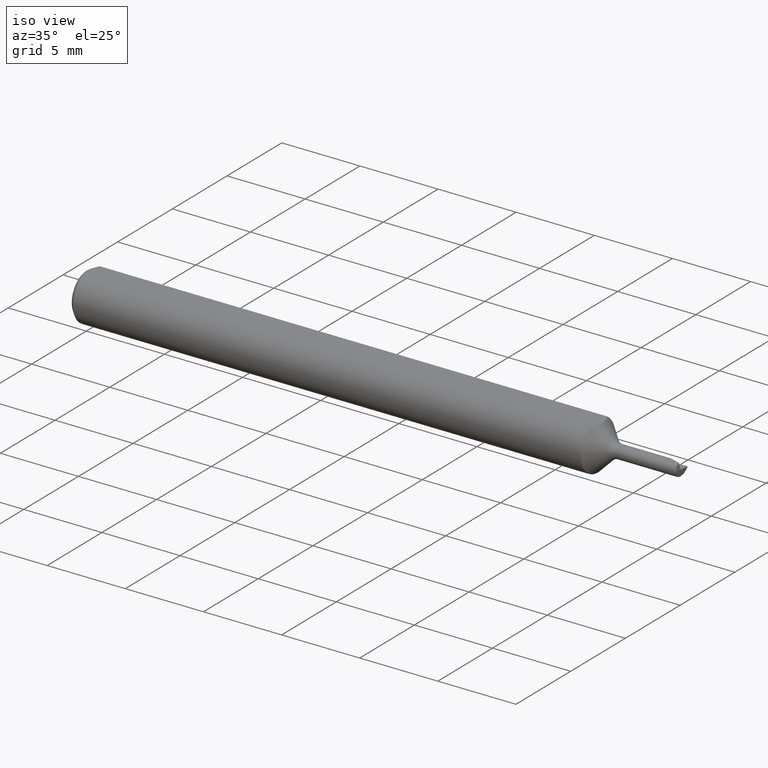
[diagram: clean part render]
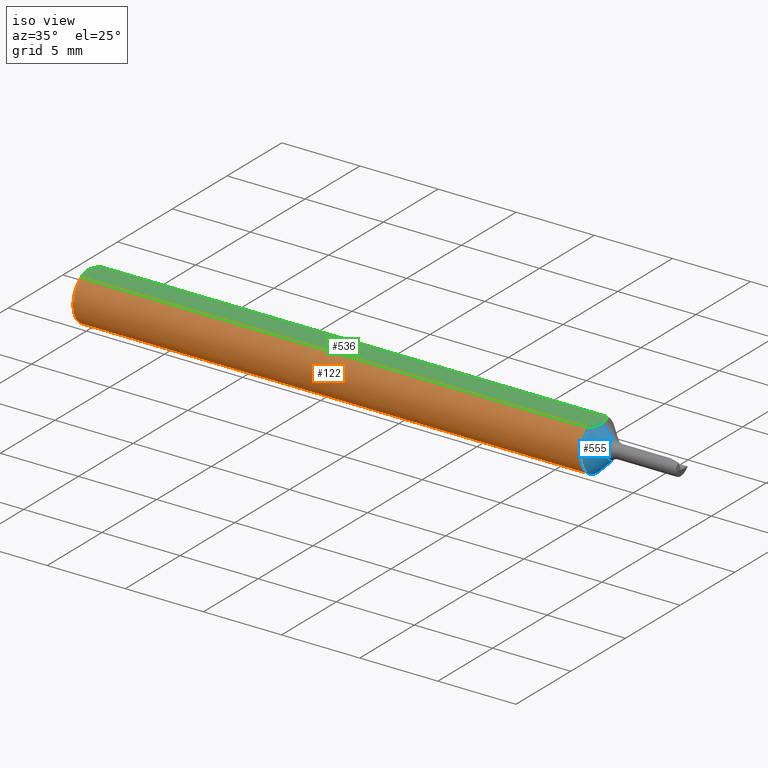
[diagram: same view with three faces highlighted in distinct colors, each labeled with its STEP entity id]
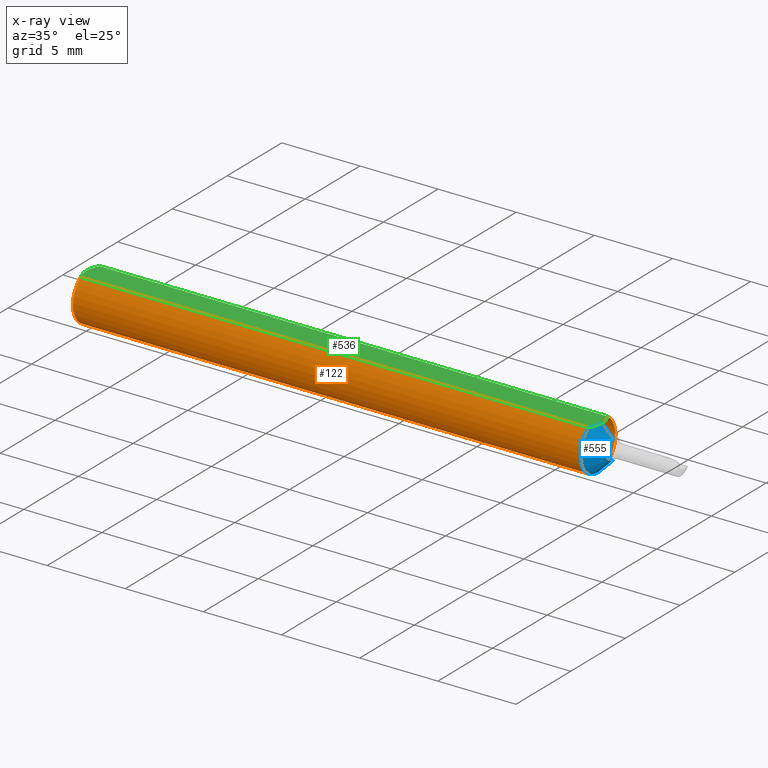
[diagram: x-ray of the same camera — body ghosted, the three highlighted faces saturated]
A machine part, iso view with three faces highlighted in distinct colors.
The next image is the same camera in x-ray (body ghosted, the three faces saturated) — at least one of them is partly hidden behind the body in this view.
Their STEP definitions:

[orange] entity #122 — the highlighted cylindrical surface (edge-blend (fillet) strip) has radius 1.5837 mm, axis along (-1, -0, -0).
#11 = VERTEX_POINT ( 'NONE', #275 ) ;
#12 = CIRCLE ( 'NONE', #595, 0.06235000000000000264 ) ;
#30 = DIRECTION ( 'NONE',  ( 0.000000000000000000, 0.000000000000000000, 1.000000000000000000 ) ) ;
#39 = LINE ( 'NONE', #563, #279 ) ;
#69 = EDGE_LOOP ( 'NONE', ( #705, #351, #175, #588, #659, #430 ) ) ;
#82 = DIRECTION ( 'NONE',  ( -1.000000000000000000, -0.000000000000000000, -0.000000000000000000 ) ) ;
#116 = EDGE_CURVE ( 'NONE', #649, #361, #39, .T. ) ;
#122 = ADVANCED_FACE ( 'NONE', ( #406 ), #462, .T. ) ;
#136 = CARTESIAN_POINT ( 'NONE',  ( 0.000000000000000000, 0.03386738844375220686, 0.05235000000000000070 ) ) ;
#157 = AXIS2_PLACEMENT_3D ( 'NONE', #189, #518, #403 ) ;
#160 = CARTESIAN_POINT ( 'NONE',  ( 1.289150000000000462, 7.635672792683746671E-18, -0.06235000000000000264 ) ) ;
#164 = EDGE_CURVE ( 'NONE', #361, #444, #12, .T. ) ;
#175 = ORIENTED_EDGE ( 'NONE', *, *, #116, .T. ) ;
#189 = CARTESIAN_POINT ( 'NONE',  ( 0.009999999999999887451, 0.000000000000000000, 0.000000000000000000 ) ) ;
#191 = EDGE_CURVE ( 'NONE', #444, #11, #537, .T. ) ;
#193 = CARTESIAN_POINT ( 'NONE',  ( 0.009999999999999887451, 0.000000000000000000, 0.000000000000000000 ) ) ;
#196 = EDGE_CURVE ( 'NONE', #11, #483, #570, .T. ) ;
#258 = CARTESIAN_POINT ( 'NONE',  ( 0.01000000000000840841, -0.03386738844395137393, 0.05235000000000001458 ) ) ;
#275 = CARTESIAN_POINT ( 'NONE',  ( 0.009999999999999890921, 0.03386738844375217911, 0.05235000000000001458 ) ) ;
#276 = DIRECTION ( 'NONE',  ( -1.000000000000000000, -0.000000000000000000, -0.000000000000000000 ) ) ;
#279 = VECTOR ( 'NONE', #82, 39.37007874015748143 ) ;
#283 = CARTESIAN_POINT ( 'NONE',  ( 1.289150000000000462, 0.000000000000000000, 0.000000000000000000 ) ) ;
#296 = CARTESIAN_POINT ( 'NONE',  ( 0.000000000000000000, 0.000000000000000000, 0.000000000000000000 ) ) ;
#323 = AXIS2_PLACEMENT_3D ( 'NONE', #441, #544, #603 ) ;
#325 = CARTESIAN_POINT ( 'NONE',  ( 0.009999999999999887451, 0.000000000000000000, -0.06235000000000000264 ) ) ;
#343 = CIRCLE ( 'NONE', #653, 0.06235000000000000264 ) ;
#350 = DIRECTION ( 'NONE',  ( -1.000000000000000000, -0.000000000000000000, -0.000000000000000000 ) ) ;
#351 = ORIENTED_EDGE ( 'NONE', *, *, #460, .T. ) ;
#361 = VERTEX_POINT ( 'NONE', #258 ) ;
#368 = VERTEX_POINT ( 'NONE', #160 ) ;
#369 = VECTOR ( 'NONE', #576, 39.37007874015748143 ) ;
#403 = DIRECTION ( 'NONE',  ( 0.000000000000000000, 0.000000000000000000, -1.000000000000000000 ) ) ;
#406 = FACE_OUTER_BOUND ( 'NONE', #69, .T. ) ;
#430 = ORIENTED_EDGE ( 'NONE', *, *, #196, .T. ) ;
#431 = DIRECTION ( 'NONE',  ( 0.000000000000000000, 0.000000000000000000, 1.000000000000000000 ) ) ;
#437 = CARTESIAN_POINT ( 'NONE',  ( 1.289150000000000462, 0.03386738844375220686, 0.05235000000000000070 ) ) ;
#440 = EDGE_CURVE ( 'NONE', #483, #368, #654, .T. ) ;
#441 = CARTESIAN_POINT ( 'NONE',  ( 1.289150000000000462, 0.000000000000000000, 0.000000000000000000 ) ) ;
#444 = VERTEX_POINT ( 'NONE', #325 ) ;
#460 = EDGE_CURVE ( 'NONE', #368, #649, #343, .T. ) ;
#462 = CYLINDRICAL_SURFACE ( 'NONE', #490, 0.06235000000000000264 ) ;
#483 = VERTEX_POINT ( 'NONE', #437 ) ;
#490 = AXIS2_PLACEMENT_3D ( 'NONE', #296, #350, #30 ) ;
#518 = DIRECTION ( 'NONE',  ( 1.000000000000000000, 0.000000000000000000, 0.000000000000000000 ) ) ;
#537 = CIRCLE ( 'NONE', #157, 0.06235000000000000264 ) ;
#544 = DIRECTION ( 'NONE',  ( -1.000000000000000000, -0.000000000000000000, -0.000000000000000000 ) ) ;
#563 = CARTESIAN_POINT ( 'NONE',  ( 0.000000000000000000, -0.03386738844375220686, 0.05235000000000000070 ) ) ;
#570 = LINE ( 'NONE', #136, #369 ) ;
#576 = DIRECTION ( 'NONE',  ( 1.000000000000000000, 0.000000000000000000, 0.000000000000000000 ) ) ;
#588 = ORIENTED_EDGE ( 'NONE', *, *, #164, .T. ) ;
#595 = AXIS2_PLACEMENT_3D ( 'NONE', #193, #618, #686 ) ;
#603 = DIRECTION ( 'NONE',  ( 0.000000000000000000, 0.000000000000000000, 1.000000000000000000 ) ) ;
#618 = DIRECTION ( 'NONE',  ( 1.000000000000000000, 0.000000000000000000, 0.000000000000000000 ) ) ;
#649 = VERTEX_POINT ( 'NONE', #671 ) ;
#653 = AXIS2_PLACEMENT_3D ( 'NONE', #283, #276, #431 ) ;
#654 = CIRCLE ( 'NONE', #323, 0.06235000000000000264 ) ;
#659 = ORIENTED_EDGE ( 'NONE', *, *, #191, .T. ) ;
#671 = CARTESIAN_POINT ( 'NONE',  ( 1.289150000000000462, -0.03386738844375220686, 0.05235000000000000070 ) ) ;
#686 = DIRECTION ( 'NONE',  ( 0.000000000000000000, 0.000000000000000000, -1.000000000000000000 ) ) ;
#705 = ORIENTED_EDGE ( 'NONE', *, *, #440, .T. ) ;

[blue] entity #555 — the highlighted conical surface has half-angle 45 deg.
#5 = CARTESIAN_POINT ( 'NONE',  ( 1.299150000000000249, -2.188243502173987421E-21, 0.05235000000000001458 ) ) ;
#9 = CARTESIAN_POINT ( 'NONE',  ( 1.299150000000000027, -0.005924191432847217796, 0.05235000000000002152 ) ) ;
#27 = ORIENTED_EDGE ( 'NONE', *, *, #254, .F. ) ;
#36 = CONICAL_SURFACE ( 'NONE', #90, 0.02382233047033655710, 0.7853981633974463916 ) ;
#38 = CARTESIAN_POINT ( 'NONE',  ( 1.327677669529663929, 0.000000000000000000, 0.02382233047033643566 ) ) ;
#68 = CARTESIAN_POINT ( 'NONE',  ( 1.298078678928531016, -0.01191689336434298939, 0.05235000000000002152 ) ) ;
#86 = ORIENTED_EDGE ( 'NONE', *, *, #460, .F. ) ;
#87 = DIRECTION ( 'NONE',  ( 0.000000000000000000, 0.000000000000000000, 1.000000000000000000 ) ) ;
#90 = AXIS2_PLACEMENT_3D ( 'NONE', #562, #356, #505 ) ;
#119 = CARTESIAN_POINT ( 'NONE',  ( 1.299150000000000249, -2.188243502173987421E-21, 0.05235000000000001458 ) ) ;
#138 = CARTESIAN_POINT ( 'NONE',  ( 1.327677669529663929, 2.917394075872797303E-18, -0.02382233047033643566 ) ) ;
#147 = EDGE_LOOP ( 'NONE', ( #27, #459, #579, #185, #86 ) ) ;
#160 = CARTESIAN_POINT ( 'NONE',  ( 1.289150000000000462, 7.635672792683746671E-18, -0.06235000000000000264 ) ) ;
#181 = CARTESIAN_POINT ( 'NONE',  ( 1.327677669529663929, 2.917394075872812325E-18, -0.02382233047033655710 ) ) ;
#182 = EDGE_CURVE ( 'NONE', #640, #401, #676, .T. ) ;
#185 = ORIENTED_EDGE ( 'NONE', *, *, #520, .T. ) ;
#192 = FACE_OUTER_BOUND ( 'NONE', #147, .T. ) ;
#235 = DIRECTION ( 'NONE',  ( -1.000000000000000000, -0.000000000000000000, -0.000000000000000000 ) ) ;
#254 = EDGE_CURVE ( 'NONE', #673, #368, #557, .T. ) ;
#268 = VECTOR ( 'NONE', #610, 39.37007874015748143 ) ;
#276 = DIRECTION ( 'NONE',  ( -1.000000000000000000, -0.000000000000000000, -0.000000000000000000 ) ) ;
#281 = CARTESIAN_POINT ( 'NONE',  ( 1.294483314197799384, -0.02321803743435391434, 0.05235000000000001458 ) ) ;
#283 = CARTESIAN_POINT ( 'NONE',  ( 1.289150000000000462, 0.000000000000000000, 0.000000000000000000 ) ) ;
#331 = VECTOR ( 'NONE', #511, 39.37007874015748143 ) ;
#343 = CIRCLE ( 'NONE', #653, 0.06235000000000000264 ) ;
#356 = DIRECTION ( 'NONE',  ( -1.000000000000000000, -0.000000000000000000, -0.000000000000000000 ) ) ;
#368 = VERTEX_POINT ( 'NONE', #160 ) ;
#393 = AXIS2_PLACEMENT_3D ( 'NONE', #609, #235, #87 ) ;
#401 = VERTEX_POINT ( 'NONE', #5 ) ;
#431 = DIRECTION ( 'NONE',  ( 0.000000000000000000, 0.000000000000000000, 1.000000000000000000 ) ) ;
#459 = ORIENTED_EDGE ( 'NONE', *, *, #665, .T. ) ;
#460 = EDGE_CURVE ( 'NONE', #368, #649, #343, .T. ) ;
#494 = CARTESIAN_POINT ( 'NONE',  ( 1.292000635225910132, -0.02861935738783992489, 0.05235000000000002152 ) ) ;
#505 = DIRECTION ( 'NONE',  ( 0.000000000000000000, 0.000000000000000000, 1.000000000000000000 ) ) ;
#511 = DIRECTION ( 'NONE',  ( -0.7071067811865489050, 0.000000000000000000, 0.7071067811865461294 ) ) ;
#516 = B_SPLINE_CURVE_WITH_KNOTS ( 'NONE', 3,
 ( #119, #9, #68, #281, #494, #553 ),
 .UNSPECIFIED., .F., .F.,
 ( 4, 2, 4 ),
 ( 0.002951453973688297674, 0.003400644490106673537, 0.003849835006525048967 ),
 .UNSPECIFIED. ) ;
#520 = EDGE_CURVE ( 'NONE', #401, #649, #516, .T. ) ;
#553 = CARTESIAN_POINT ( 'NONE',  ( 1.289150000000000462, -0.03386738844375220686, 0.05235000000000000070 ) ) ;
#555 = ADVANCED_FACE ( 'NONE', ( #192 ), #36, .T. ) ;
#557 = LINE ( 'NONE', #181, #268 ) ;
#560 = CIRCLE ( 'NONE', #393, 0.02382233047033655710 ) ;
#562 = CARTESIAN_POINT ( 'NONE',  ( 1.327677669529663929, 0.000000000000000000, 0.000000000000000000 ) ) ;
#567 = CARTESIAN_POINT ( 'NONE',  ( 1.327677669529663929, 0.000000000000000000, 0.02382233047033655710 ) ) ;
#579 = ORIENTED_EDGE ( 'NONE', *, *, #182, .T. ) ;
#609 = CARTESIAN_POINT ( 'NONE',  ( 1.327677669529663929, 0.000000000000000000, 0.000000000000000000 ) ) ;
#610 = DIRECTION ( 'NONE',  ( -0.7071067811865489050, 8.659560562354915602E-17, -0.7071067811865461294 ) ) ;
#640 = VERTEX_POINT ( 'NONE', #38 ) ;
#649 = VERTEX_POINT ( 'NONE', #671 ) ;
#653 = AXIS2_PLACEMENT_3D ( 'NONE', #283, #276, #431 ) ;
#665 = EDGE_CURVE ( 'NONE', #673, #640, #560, .T. ) ;
#671 = CARTESIAN_POINT ( 'NONE',  ( 1.289150000000000462, -0.03386738844375220686, 0.05235000000000000070 ) ) ;
#673 = VERTEX_POINT ( 'NONE', #138 ) ;
#676 = LINE ( 'NONE', #567, #331 ) ;

[green] entity #536 — the highlighted planar face has unit normal (0, 0, -1).
#5 = CARTESIAN_POINT ( 'NONE',  ( 1.299150000000000249, -2.188243502173987421E-21, 0.05235000000000001458 ) ) ;
#7 = DIRECTION ( 'NONE',  ( 0.000000000000000000, 0.000000000000000000, -1.000000000000000000 ) ) ;
#9 = CARTESIAN_POINT ( 'NONE',  ( 1.299150000000000027, -0.005924191432847217796, 0.05235000000000002152 ) ) ;
#11 = VERTEX_POINT ( 'NONE', #275 ) ;
#39 = LINE ( 'NONE', #563, #279 ) ;
#56 = ORIENTED_EDGE ( 'NONE', *, *, #205, .T. ) ;
#68 = CARTESIAN_POINT ( 'NONE',  ( 1.298078678928531016, -0.01191689336434298939, 0.05235000000000002152 ) ) ;
#82 = DIRECTION ( 'NONE',  ( -1.000000000000000000, -0.000000000000000000, -0.000000000000000000 ) ) ;
#114 = PLANE ( 'NONE',  #574 ) ;
#116 = EDGE_CURVE ( 'NONE', #649, #361, #39, .T. ) ;
#117 = CARTESIAN_POINT ( 'NONE',  ( 0.004679365186825695105, -0.02325953974091124477, 0.05235000000000000764 ) ) ;
#119 = CARTESIAN_POINT ( 'NONE',  ( 1.299150000000000249, -2.188243502173987421E-21, 0.05235000000000001458 ) ) ;
#136 = CARTESIAN_POINT ( 'NONE',  ( 0.000000000000000000, 0.03386738844375220686, 0.05235000000000000070 ) ) ;
#150 = ORIENTED_EDGE ( 'NONE', *, *, #116, .F. ) ;
#163 = CARTESIAN_POINT ( 'NONE',  ( 1.299150000000000249, -2.188243502173987421E-21, 0.05235000000000001458 ) ) ;
#178 = CARTESIAN_POINT ( 'NONE',  ( 0.007163450771416182694, -0.02864528976632487248, 0.05235000000000001458 ) ) ;
#196 = EDGE_CURVE ( 'NONE', #11, #483, #570, .T. ) ;
#197 = CARTESIAN_POINT ( 'NONE',  ( 0.009999999999999890921, 0.03386738844375217911, 0.05235000000000001458 ) ) ;
#203 = CARTESIAN_POINT ( 'NONE',  ( 1.289150000000000462, 0.03386738844375220686, 0.05235000000000000070 ) ) ;
#205 = EDGE_CURVE ( 'NONE', #11, #523, #298, .T. ) ;
#215 = DIRECTION ( 'NONE',  ( -1.000000000000000000, 0.000000000000000000, -0.000000000000000000 ) ) ;
#218 = CARTESIAN_POINT ( 'NONE',  ( 0.000000000000000000, 0.000000000000000000, 0.05235000000000033377 ) ) ;
#258 = CARTESIAN_POINT ( 'NONE',  ( 0.01000000000000840841, -0.03386738844395137393, 0.05235000000000001458 ) ) ;
#267 = EDGE_LOOP ( 'NONE', ( #678, #56, #310, #150, #701, #638 ) ) ;
#273 = CARTESIAN_POINT ( 'NONE',  ( 0.01000000000000840841, -0.03386738844395137393, 0.05235000000000001458 ) ) ;
#275 = CARTESIAN_POINT ( 'NONE',  ( 0.009999999999999890921, 0.03386738844375217911, 0.05235000000000001458 ) ) ;
#277 = EDGE_CURVE ( 'NONE', #483, #401, #487, .T. ) ;
#279 = VECTOR ( 'NONE', #82, 39.37007874015748143 ) ;
#281 = CARTESIAN_POINT ( 'NONE',  ( 1.294483314197799384, -0.02321803743435391434, 0.05235000000000001458 ) ) ;
#298 = B_SPLINE_CURVE_WITH_KNOTS ( 'NONE', 3,
 ( #197, #300, #613, #400, #408, #346 ),
 .UNSPECIFIED., .F., .F.,
 ( 4, 2, 4 ),
 ( 0.0009229516234078821539, 0.001371626545108044996, 0.001820301466808207621 ),
 .UNSPECIFIED. ) ;
#300 = CARTESIAN_POINT ( 'NONE',  ( 0.007185421074056205608, 0.02868573718286560742, 0.05235000000000002152 ) ) ;
#310 = ORIENTED_EDGE ( 'NONE', *, *, #485, .T. ) ;
#333 = CARTESIAN_POINT ( 'NONE',  ( 1.500000000000000222, 0.06235000000000000264, 0.05235000000000001458 ) ) ;
#346 = CARTESIAN_POINT ( 'NONE',  ( 0.000000000000000000, 0.000000000000000000, 0.05235000000000033377 ) ) ;
#361 = VERTEX_POINT ( 'NONE', #258 ) ;
#369 = VECTOR ( 'NONE', #576, 39.37007874015748143 ) ;
#378 = CARTESIAN_POINT ( 'NONE',  ( 1.298078676938162701, 0.01191467125359133884, 0.05235000000000001458 ) ) ;
#400 = CARTESIAN_POINT ( 'NONE',  ( 0.001063697276021357847, 0.01189177144351693735, 0.05235000000000001458 ) ) ;
#401 = VERTEX_POINT ( 'NONE', #5 ) ;
#408 = CARTESIAN_POINT ( 'NONE',  ( -1.099542139246802830E-15, 0.005954997531773979953, 0.05235000000000002152 ) ) ;
#413 = CARTESIAN_POINT ( 'NONE',  ( 1.294488220844932647, 0.02320483992252780209, 0.05235000000000002152 ) ) ;
#425 = CARTESIAN_POINT ( 'NONE',  ( 1.299150000000000471, 0.005920875246928958106, 0.05235000000000002152 ) ) ;
#437 = CARTESIAN_POINT ( 'NONE',  ( 1.289150000000000462, 0.03386738844375220686, 0.05235000000000000070 ) ) ;
#483 = VERTEX_POINT ( 'NONE', #437 ) ;
#484 = CARTESIAN_POINT ( 'NONE',  ( -1.070637973615595603E-15, -0.005965286321711177862, 0.05235000000000002152 ) ) ;
#485 = EDGE_CURVE ( 'NONE', #523, #361, #681, .T. ) ;
#487 = B_SPLINE_CURVE_WITH_KNOTS ( 'NONE', 3,
 ( #203, #525, #413, #378, #425, #163 ),
 .UNSPECIFIED., .F., .F.,
 ( 4, 2, 4 ),
 ( 0.002053575827796387619, 0.002502514900742342646, 0.002951453973688297674 ),
 .UNSPECIFIED. ) ;
#494 = CARTESIAN_POINT ( 'NONE',  ( 1.292000635225910132, -0.02861935738783992489, 0.05235000000000002152 ) ) ;
#516 = B_SPLINE_CURVE_WITH_KNOTS ( 'NONE', 3,
 ( #119, #9, #68, #281, #494, #553 ),
 .UNSPECIFIED., .F., .F.,
 ( 4, 2, 4 ),
 ( 0.002951453973688297674, 0.003400644490106673537, 0.003849835006525048967 ),
 .UNSPECIFIED. ) ;
#520 = EDGE_CURVE ( 'NONE', #401, #649, #516, .T. ) ;
#523 = VERTEX_POINT ( 'NONE', #661 ) ;
#525 = CARTESIAN_POINT ( 'NONE',  ( 1.291993063989529400, 0.02863329606483937598, 0.05235000000000002152 ) ) ;
#536 = ADVANCED_FACE ( 'NONE', ( #596 ), #114, .F. ) ;
#553 = CARTESIAN_POINT ( 'NONE',  ( 1.289150000000000462, -0.03386738844375220686, 0.05235000000000000070 ) ) ;
#563 = CARTESIAN_POINT ( 'NONE',  ( 0.000000000000000000, -0.03386738844375220686, 0.05235000000000000070 ) ) ;
#570 = LINE ( 'NONE', #136, #369 ) ;
#574 = AXIS2_PLACEMENT_3D ( 'NONE', #333, #7, #215 ) ;
#576 = DIRECTION ( 'NONE',  ( 1.000000000000000000, 0.000000000000000000, 0.000000000000000000 ) ) ;
#596 = FACE_OUTER_BOUND ( 'NONE', #267, .T. ) ;
#613 = CARTESIAN_POINT ( 'NONE',  ( 0.004671770759546769666, 0.02323517832780105236, 0.05235000000000002152 ) ) ;
#638 = ORIENTED_EDGE ( 'NONE', *, *, #277, .F. ) ;
#649 = VERTEX_POINT ( 'NONE', #671 ) ;
#661 = CARTESIAN_POINT ( 'NONE',  ( 0.000000000000000000, 0.000000000000000000, 0.05235000000000033377 ) ) ;
#664 = CARTESIAN_POINT ( 'NONE',  ( 0.001055043921644571291, -0.01186408073217194367, 0.05235000000000002152 ) ) ;
#671 = CARTESIAN_POINT ( 'NONE',  ( 1.289150000000000462, -0.03386738844375220686, 0.05235000000000000070 ) ) ;
#678 = ORIENTED_EDGE ( 'NONE', *, *, #196, .F. ) ;
#681 = B_SPLINE_CURVE_WITH_KNOTS ( 'NONE', 3,
 ( #218, #484, #664, #117, #178, #273 ),
 .UNSPECIFIED., .F., .F.,
 ( 4, 2, 4 ),
 ( 0.001820301466808207621, 0.002269751589840481119, 0.002719201712872754834 ),
 .UNSPECIFIED. ) ;
#701 = ORIENTED_EDGE ( 'NONE', *, *, #520, .F. ) ;